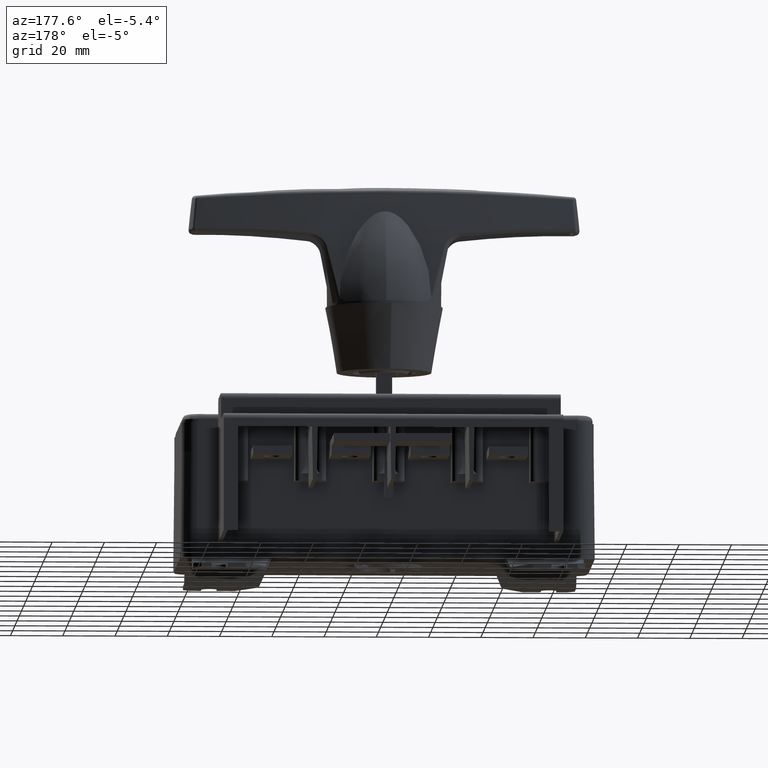
[diagram: clean part render]
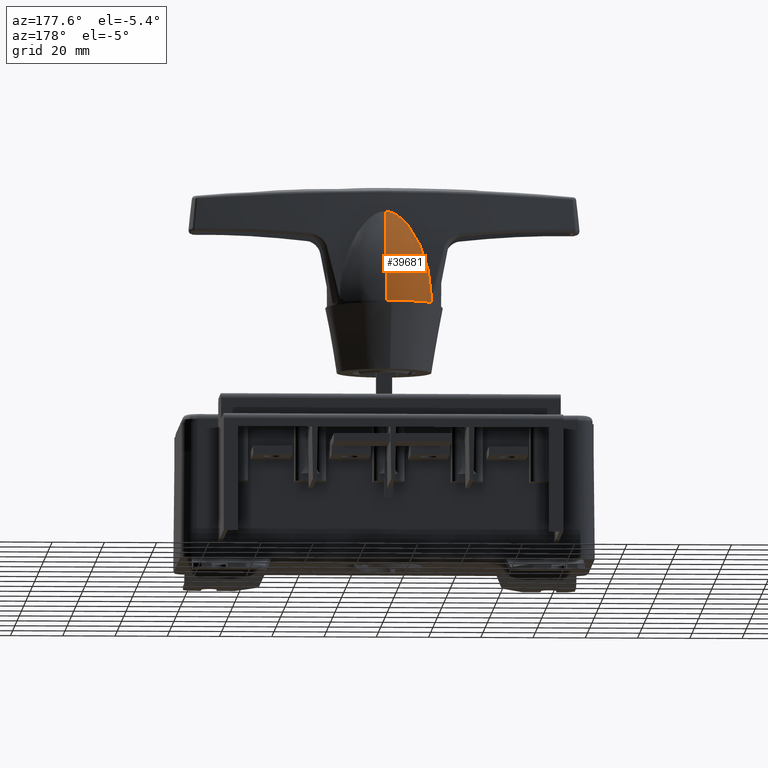
[diagram: same view with one face highlighted and labeled with its STEP entity id]
A machine part, auxiliary view. The second image highlights one B-rep face of the part: STEP entity #39681.
In plain terms, the highlighted face is a freeform B-spline surface patch.
Its self-contained STEP definition (entity closure, byte-faithful):
#687 = CARTESIAN_POINT ( 'NONE',  ( -23.25955970654199900, 14.82150543373656000, 58.49999998119420000 ) ) ;
#991 = CARTESIAN_POINT ( 'NONE',  ( -22.99306660574339700, 15.12114104643358000, 59.23949942421830900 ) ) ;
#1199 = CARTESIAN_POINT ( 'NONE',  ( -11.02259320345208400, 19.27801909902680700, 83.25166309713958400 ) ) ;
#1354 = CARTESIAN_POINT ( 'NONE',  ( -5.599590954219724600, 11.61130025377316100, 93.80796638541171700 ) ) ;
#2466 = CARTESIAN_POINT ( 'NONE',  ( -15.88925631495759200, 13.17767338613751500, 85.85752296628248800 ) ) ;
#2604 = CARTESIAN_POINT ( 'NONE',  ( -18.33258777842415900, 13.67676179704061200, 81.48840182297408300 ) ) ;
#2894 = CARTESIAN_POINT ( 'NONE',  ( -8.457731033725894000, 12.01664280881841900, 93.03485809538293000 ) ) ;
#3203 = ORIENTED_EDGE ( 'NONE', *, *, #10082, .T. ) ;
#4198 = FACE_OUTER_BOUND ( 'NONE', #20917, .T. ) ;
#4506 = CIRCLE ( 'NONE', #34608, 62.77777777777776400 ) ;
#4573 = CARTESIAN_POINT ( 'NONE',  ( -9.265151234711904500, 11.92249958515145100, 93.80796638541170300 ) ) ;
#5819 = CARTESIAN_POINT ( 'NONE',  ( -9.940802901620987300, 12.20210583319821600, 92.24276887739259200 ) ) ;
#6107 = CARTESIAN_POINT ( 'NONE',  ( -20.22198371959834200, 14.11849174586404100, 76.83068018647131200 ) ) ;
#6316 = DIRECTION ( 'NONE',  ( 0.0000000000000000000, 0.0000000000000000000, -1.000000000000000000 ) ) ;
#6388 = CARTESIAN_POINT ( 'NONE',  ( -21.19837466724742100, 14.37847349523584800, 73.64139503621997600 ) ) ;
#6748 = CARTESIAN_POINT ( 'NONE',  ( -6.541103756446950100, 0.5213923284127519600, 58.50000000000000000 ) ) ;
#7407 = CARTESIAN_POINT ( 'NONE',  ( -23.20130716397232700, 14.88938201786345200, 58.51611077592121300 ) ) ;
#7461 = CARTESIAN_POINT ( 'NONE',  ( -15.03998058678971200, 7.707601118337541000, 93.80796638541171700 ) ) ;
#7552 = CARTESIAN_POINT ( 'NONE',  ( -23.01223232575048200, 15.10236102190532000, 59.06074296171140500 ) ) ;
#7754 = CARTESIAN_POINT ( 'NONE',  ( -18.67029633229002500, 20.31944276678452600, 71.04321541083889700 ) ) ;
#7895 = CARTESIAN_POINT ( 'NONE',  ( -20.52310191561154100, 12.34384370379625700, 83.25166309713958400 ) ) ;
#8061 = VERTEX_POINT ( 'NONE', #9647 ) ;
#9437 = CARTESIAN_POINT ( 'NONE',  ( -9.584867447317980900, 12.15513544114592500, 92.46292611463765400 ) ) ;
#9573 = CARTESIAN_POINT ( 'NONE',  ( -7.269058350802986000, 11.88775211295035900, 93.43428325674993600 ) ) ;
#9647 = CARTESIAN_POINT ( 'NONE',  ( -23.25955970654199900, 14.82150543373656000, 58.49999998119420000 ) ) ;
#9719 = CARTESIAN_POINT ( 'NONE',  ( -5.588770801000860500, 11.73874886907784000, 93.61918897574990700 ) ) ;
#10082 = EDGE_CURVE ( 'NONE', #42116, #31746, #27199, .T. ) ;
#10101 =( BOUNDED_SURFACE ( )  B_SPLINE_SURFACE ( 3, 3, ( 
 ( #1354, #4573, #37574, #7461 ),
 ( #14130, #1199, #34361, #7895 ),
 ( #30712, #13976, #7754, #17580 ),
 ( #31142, #34212, #11238, #10654 ) ),
 .UNSPECIFIED., .F., .F., .F. ) 
 B_SPLINE_SURFACE_WITH_KNOTS ( ( 4, 4 ),
 ( 4, 4 ),
 ( 0.0000000000000000000, 1.000000000000000000 ),
 ( 0.0000000000000000000, 1.000000000000000000 ),
 .UNSPECIFIED. ) 
 GEOMETRIC_REPRESENTATION_ITEM ( )  RATIONAL_B_SPLINE_SURFACE ( (
 ( 1.000000000000000000, 0.9256472790117538100, 0.9256472790117538100, 1.000000000000000000),
 ( 0.9701374170121390700, 0.8980050603247776700, 0.8980050603247776700, 0.9701374170121390700),
 ( 0.9701374170121390700, 0.8980050603247776700, 0.8980050603247776700, 0.9701374170121390700),
 ( 1.000000000000000000, 0.9256472790117538100, 0.9256472790117538100, 1.000000000000000000) ) ) 
 REPRESENTATION_ITEM ( '' )  SURFACE ( )  );
#10161 = EDGE_CURVE ( 'NONE', #8061, #42116, #21664, .T. ) ;
#10595 = CARTESIAN_POINT ( 'NONE',  ( -23.06444637196697700, 15.04550964153985700, 58.80403187180517200 ) ) ;
#10654 = CARTESIAN_POINT ( 'NONE',  ( -23.34031507336433400, 14.72593281527222200, 58.27635067306497500 ) ) ;
#11186 = CARTESIAN_POINT ( 'NONE',  ( -22.94970514916772300, 15.15822494278983300, 59.77145787696366600 ) ) ;
#11238 = CARTESIAN_POINT ( 'NONE',  ( -18.64527163732218900, 20.27859584559993800, 58.27635067306496800 ) ) ;
#11865 = AXIS2_PLACEMENT_3D ( 'NONE', #6748, #6316, #20095 ) ;
#12764 = CARTESIAN_POINT ( 'NONE',  ( -10.62845700114036200, 12.29663536375036300, 91.76876693744648600 ) ) ;
#13765 = CARTESIAN_POINT ( 'NONE',  ( -23.08572354950342700, 15.02184796473994100, 58.71874302407036300 ) ) ;
#13976 = CARTESIAN_POINT ( 'NONE',  ( -11.93669428238075100, 23.10385713141097200, 71.04321541083889700 ) ) ;
#14130 = CARTESIAN_POINT ( 'NONE',  ( -4.992166110878080200, 18.76604692137035700, 83.25166309713958400 ) ) ;
#15039 = CARTESIAN_POINT ( 'NONE',  ( -5.588770801000860500, 11.73874886907784000, 93.61918897574990700 ) ) ;
#15681 = CARTESIAN_POINT ( 'NONE',  ( -21.60262295142387500, 14.49769712456584600, 72.03127076578520900 ) ) ;
#16103 = CARTESIAN_POINT ( 'NONE',  ( -14.94193264034050000, 12.99955858419640700, 87.24294438169764000 ) ) ;
#17523 = CARTESIAN_POINT ( 'NONE',  ( -23.13435823541998100, 14.96650031002782200, 58.60505474457237100 ) ) ;
#17580 = CARTESIAN_POINT ( 'NONE',  ( -23.37504650992763200, 14.75529991397247200, 71.04321541083888300 ) ) ;
#17659 = CARTESIAN_POINT ( 'NONE',  ( -23.22991914609090000, 14.85615846832627800, 58.49999867398221900 ) ) ;
#17980 = DIRECTION ( 'NONE',  ( 0.08459384616001253100, 0.9964155163343534300, 0.0000000000000000000 ) ) ;
#19008 = CARTESIAN_POINT ( 'NONE',  ( -22.57943992012550900, 14.82495269396565600, 67.15737781611835500 ) ) ;
#19594 = CARTESIAN_POINT ( 'NONE',  ( -19.64683257640218300, 13.97703746034347300, 78.41592289538614600 ) ) ;
#20095 = DIRECTION ( 'NONE',  ( -1.000000000000000000, 0.0000000000000000000, 0.0000000000000000000 ) ) ;
#20607 = CARTESIAN_POINT ( 'NONE',  ( -23.15333217567509600, 14.94476739792440200, 58.56995188629527900 ) ) ;
#20917 = EDGE_LOOP ( 'NONE', ( #3203, #38902, #34081, #38741 ) ) ;
#21025 = CARTESIAN_POINT ( 'NONE',  ( -22.93920199221885200, 15.14063181537020100, 60.48502240383039900 ) ) ;
#21185 = CARTESIAN_POINT ( 'NONE',  ( -9.990652816527461500, -40.11021817099924600, 58.50000000000000000 ) ) ;
#21664 = B_SPLINE_CURVE_WITH_KNOTS ( 'NONE', 3,
 ( #687, #17659, #7407, #20607, #17523, #13765, #10595, #7552, #991, #11186, #41024, #21025 ),
 .UNSPECIFIED., .F., .F.,
 ( 4, 2, 2, 2, 2, 4 ),
 ( 1.492443006929392000E-015, 0.0001348285991340261400, 0.0002696571982665598800, 0.0005393143965316294100, 0.001078628793061789900, 0.002157257586122110100 ),
 .UNSPECIFIED. ) ;
#22356 = CARTESIAN_POINT ( 'NONE',  ( -17.59289995371516100, 13.51752541242495400, 82.98244076389609300 ) ) ;
#22629 = CARTESIAN_POINT ( 'NONE',  ( -14.44294264971545500, 12.90884281867843300, 87.91417739140808900 ) ) ;
#22644 = VERTEX_POINT ( 'NONE', #28331 ) ;
#22775 = CARTESIAN_POINT ( 'NONE',  ( -8.841859229980793000, 12.06220118097077300, 92.85997470954514200 ) ) ;
#25691 = CARTESIAN_POINT ( 'NONE',  ( -22.93920199221885200, 15.14063181537020100, 60.48502240383039900 ) ) ;
#26128 = CARTESIAN_POINT ( 'NONE',  ( -7.672176748064722500, 11.92952606432531000, 93.32153453467003600 ) ) ;
#27199 = B_SPLINE_CURVE_WITH_KNOTS ( 'NONE', 3,
 ( #25691, #42614, #19008, #15681, #6388, #6107, #19594, #2604, #22356, #39139, #2466, #16103, #22629, #39428, #29327, #42761, #29051, #29631, #12764, #5819, #9437, #22775, #2894, #26128, #9573, #32859, #36215, #9719 ),
 .UNSPECIFIED., .F., .F.,
 ( 4, 2, 2, 2, 2, 2, 2, 2, 2, 2, 2, 2, 2, 4 ),
 ( 0.0000000000000000000, 0.009960402747485516300, 0.01494060412122829600, 0.01992080549497107800, 0.02490100686871385400, 0.02739110755558526700, 0.02988120824245667200, 0.03237130892932808100, 0.03361635927276378200, 0.03486140961619948300, 0.03610645995963518400, 0.03735151030307088500, 0.03859656064650659300, 0.03984161098994229400 ),
 .UNSPECIFIED. ) ;
#28036 = DIRECTION ( 'NONE',  ( -0.9964155163343535500, 0.08459384616001244800, 0.0000000000000000000 ) ) ;
#28331 = CARTESIAN_POINT ( 'NONE',  ( -4.680039140926677300, 22.44253368776850300, 58.50000000000000000 ) ) ;
#29051 = CARTESIAN_POINT ( 'NONE',  ( -11.60371817757706300, 12.43961651426582500, 90.97952266983604400 ) ) ;
#29327 = CARTESIAN_POINT ( 'NONE',  ( -12.82178327219177800, 12.63048953085269400, 89.82284458689648000 ) ) ;
#29631 = CARTESIAN_POINT ( 'NONE',  ( -10.96013453587994800, 12.34419650554127500, 91.51486524214284700 ) ) ;
#30469 = EDGE_CURVE ( 'NONE', #8061, #22644, #31675, .T. ) ;
#30712 = CARTESIAN_POINT ( 'NONE',  ( -4.676225263588140300, 22.48745665474558900, 71.04321541083888300 ) ) ;
#31142 = CARTESIAN_POINT ( 'NONE',  ( -4.680072841664262700, 22.44213673291457700, 58.27635067306497500 ) ) ;
#31675 = CIRCLE ( 'NONE', #11865, 22.00000000000000000 ) ;
#31746 = VERTEX_POINT ( 'NONE', #15039 ) ;
#32503 = EDGE_CURVE ( 'NONE', #31746, #22644, #4506, .T. ) ;
#32859 = CARTESIAN_POINT ( 'NONE',  ( -6.437850118377411100, 11.80871479072433800, 93.58598066004080400 ) ) ;
#34081 = ORIENTED_EDGE ( 'NONE', *, *, #30469, .F. ) ;
#34212 = CARTESIAN_POINT ( 'NONE',  ( -11.92556221351148300, 23.05726546508335800, 58.27635067306496800 ) ) ;
#34361 = CARTESIAN_POINT ( 'NONE',  ( -16.61541318894905200, 16.96532996311367800, 83.25166309713958400 ) ) ;
#34608 = AXIS2_PLACEMENT_3D ( 'NONE', #21185, #28036, #17980 ) ;
#35930 = CARTESIAN_POINT ( 'NONE',  ( -22.93920199221885200, 15.14063181537020100, 60.48502240383039900 ) ) ;
#36215 = CARTESIAN_POINT ( 'NONE',  ( -6.013758956279194700, 11.77189356663189600, 93.62352362557918200 ) ) ;
#37574 = CARTESIAN_POINT ( 'NONE',  ( -12.66471456249438200, 10.51674485043820800, 93.80796638541170300 ) ) ;
#38741 = ORIENTED_EDGE ( 'NONE', *, *, #10161, .T. ) ;
#38902 = ORIENTED_EDGE ( 'NONE', *, *, #32503, .T. ) ;
#39139 = CARTESIAN_POINT ( 'NONE',  ( -16.33442874130662000, 13.26450271374952500, 85.14761306346200300 ) ) ;
#39428 = CARTESIAN_POINT ( 'NONE',  ( -13.38269878887942700, 12.72430839424344900, 89.20398564987972600 ) ) ;
#39681 = ADVANCED_FACE ( 'NONE', ( #4198 ), #10101, .T. ) ;
#41024 = CARTESIAN_POINT ( 'NONE',  ( -22.94130987471977400, 15.15524392163316800, 60.12791817144521600 ) ) ;
#42116 = VERTEX_POINT ( 'NONE', #35930 ) ;
#42614 = CARTESIAN_POINT ( 'NONE',  ( -22.91933039899781100, 15.00291947207619200, 63.85068405188864900 ) ) ;
#42761 = CARTESIAN_POINT ( 'NONE',  ( -11.91645135614021300, 12.48761321883278600, 90.69719198691836900 ) ) ;